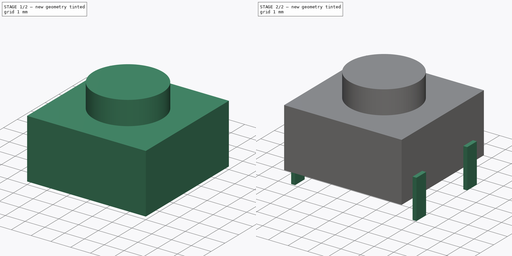
[diagram: build sequence overview — one tinted view per stage of 2, left to right]
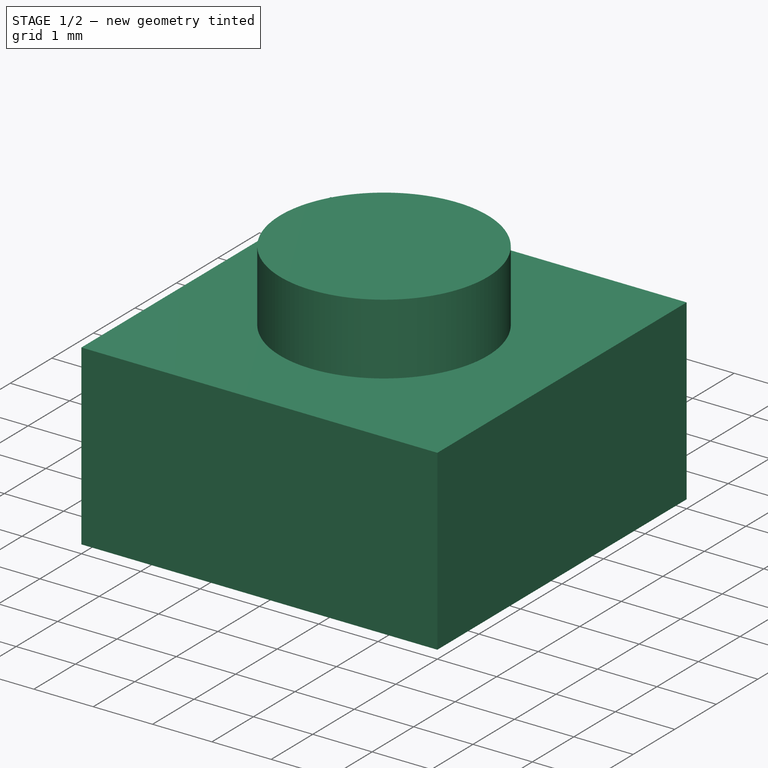
[diagram: stage 1 of 2 — iso view after this stage's code; geometry added in this stage tinted green]
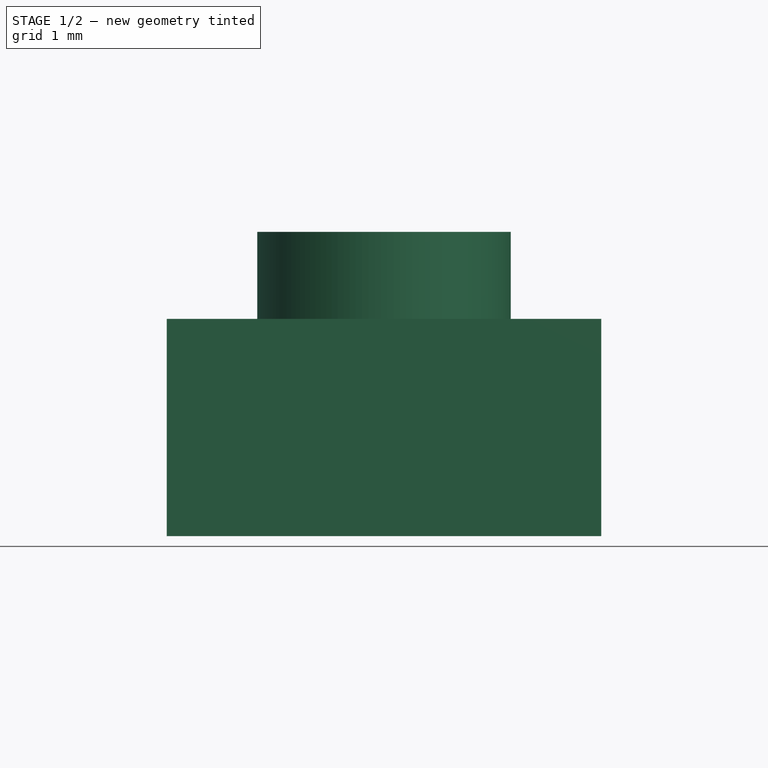
[diagram: stage 1 of 2 — front view after this stage's code; geometry added in this stage tinted green]
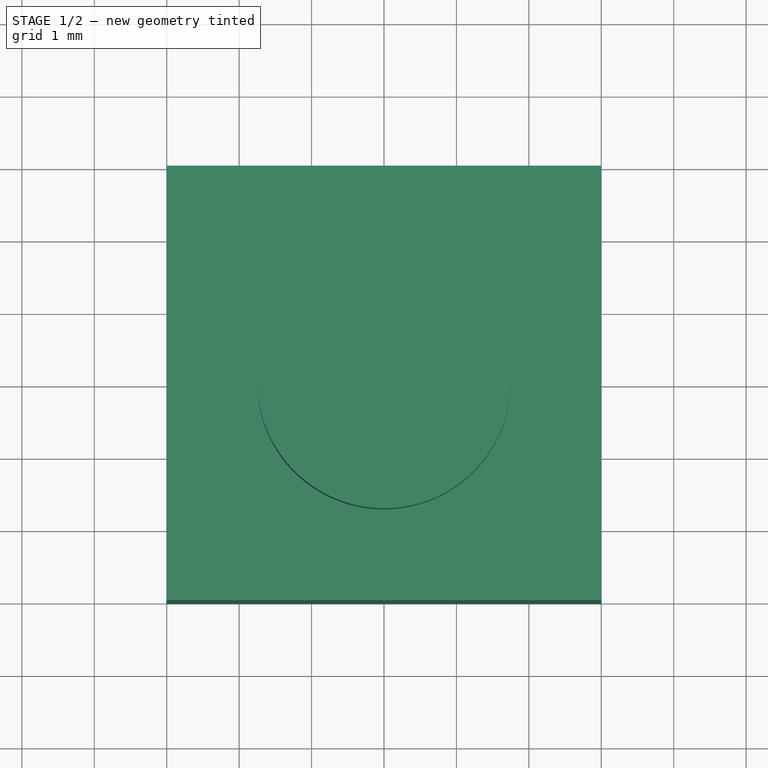
[diagram: stage 1 of 2 — top view after this stage's code; geometry added in this stage tinted green]
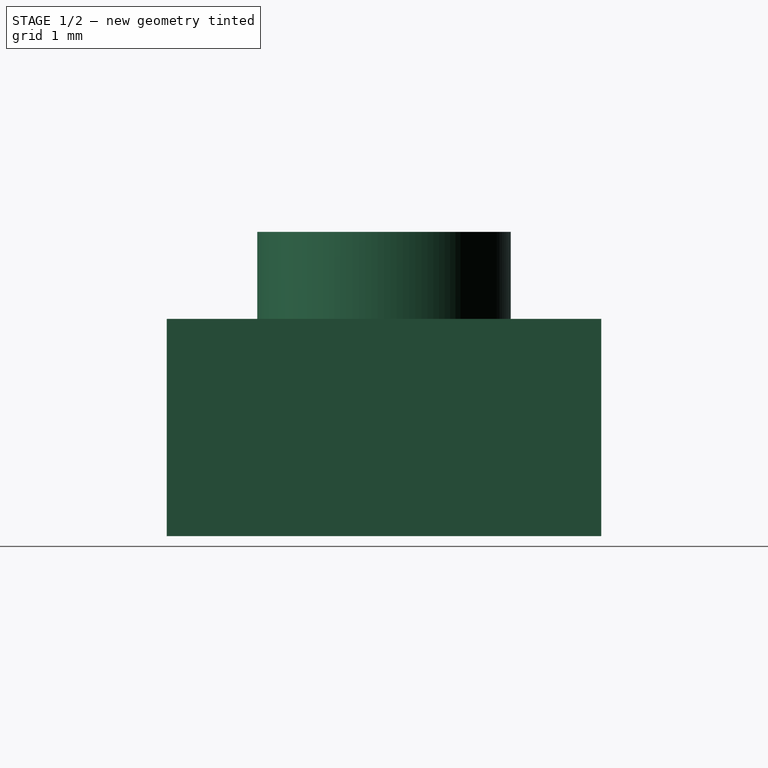
[diagram: stage 1 of 2 — right view after this stage's code; geometry added in this stage tinted green]
FCSTD DOCUMENT  (FreeCAD 0.18.4R)
Label: button
License: All rights reserved
LicenseURL: http://en.wikipedia.org/wiki/All_rights_reserved
objects: Sketcher::SketchObject×3, PartDesign::Pad×3, PartDesign::Mirrored×1, PartDesign::Body×1
note: 11 computed .brp shape members not serialized (recipe doc carries the construction recipe); baked Part::Feature solids carry a one-line shape summary decoded from their .brp

FEATURE [Sketcher::SketchObject] Sketch
  MapMode = 5
  Support = -> [XY_Plane]
  sketch-geometry (6):
    g0: LineSegment StartX=-3 StartY=-3 StartZ=0 EndX=3 EndY=-3 EndZ=0
    g1: LineSegment StartX=3 StartY=-3 StartZ=0 EndX=3 EndY=3 EndZ=0
    g2: LineSegment StartX=3 StartY=3 StartZ=0 EndX=-3 EndY=3 EndZ=0
    g3: LineSegment StartX=-3 StartY=3 StartZ=0 EndX=-3 EndY=-3 EndZ=0
    g4: LineSegment [constr] StartX=-3 StartY=3 StartZ=0 EndX=3 EndY=-3 EndZ=0
    g5: LineSegment [constr] StartX=3 StartY=3 StartZ=0 EndX=-3 EndY=-3 EndZ=0
  constraints (16):
    c: Coincident(g0,g1)
    c: Coincident(g1,g2)
    c: Coincident(g2,g3)
    c: Coincident(g3,g0)
    c: Horizontal(g0)
    c: Horizontal(g2)
    c: Vertical(g1)
    c: Vertical(g3)
    c: Coincident(g4,g2)
    c: Coincident(g4,g0)
    c: Coincident(g5,g1)
    c: Coincident(g5,g0)
    c: PointOnObject(g-1,g5)
    c: PointOnObject(g-1,g4)
    c: Equal(g3,g2)
    c: Distance(g2) = 6
FEATURE [PartDesign::Pad] Pad
  Length = 3
  Length2 = 100
  Profile = -> Sketch
  Type = 0
FEATURE [Sketcher::SketchObject] Sketch001
  MapMode = 5
  Placement = pos=(0,0,3) rot=(0,0,1;0rad)
  Support = -> [Pad]
  sketch-geometry (1):
    g0: Circle CenterX=0 CenterY=0 CenterZ=0 NormalX=0 NormalY=0 NormalZ=1 AngleXU=0 Radius=1.75
  constraints (2):
    c: Radius(g0) = 1.75
    c: Coincident(g0,g-1)
FEATURE [PartDesign::Pad] Pad001
  BaseFeature = -> Pad
  Length = 1.2
  Length2 = 100
  Profile = -> Sketch001
  Type = 0
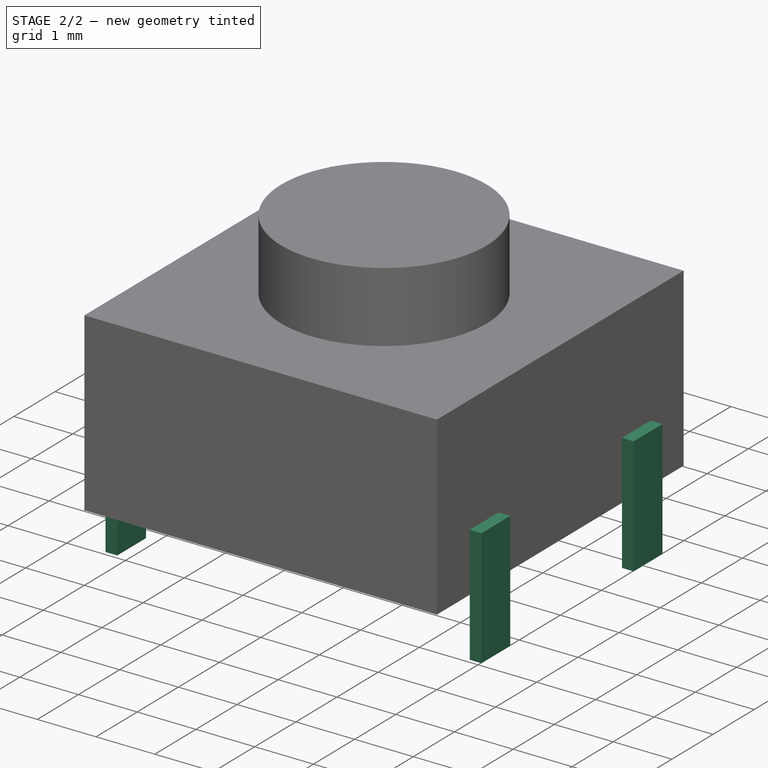
[diagram: stage 2 of 2 — iso view after this stage's code; geometry added in this stage tinted green]
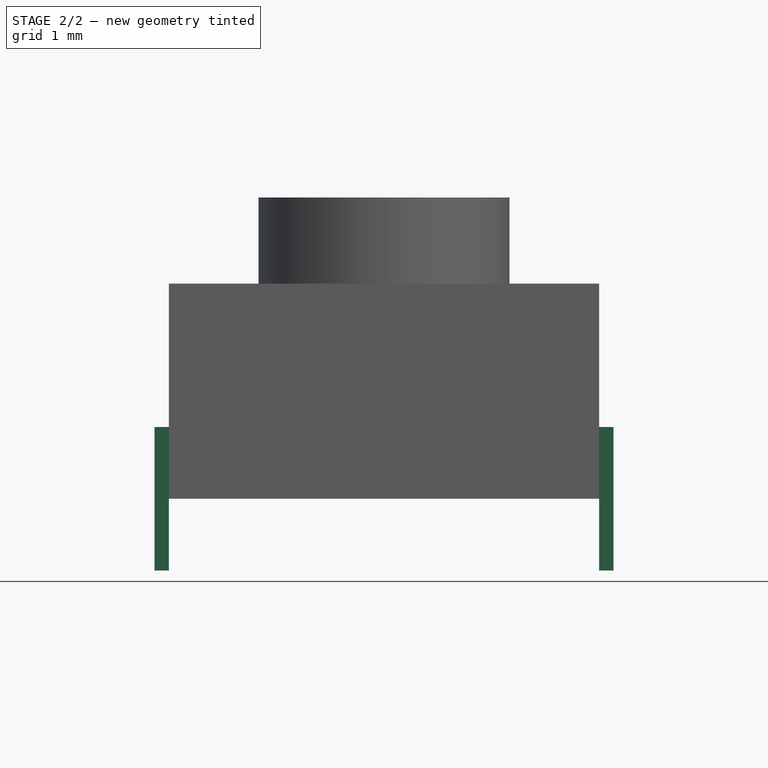
[diagram: stage 2 of 2 — front view after this stage's code; geometry added in this stage tinted green]
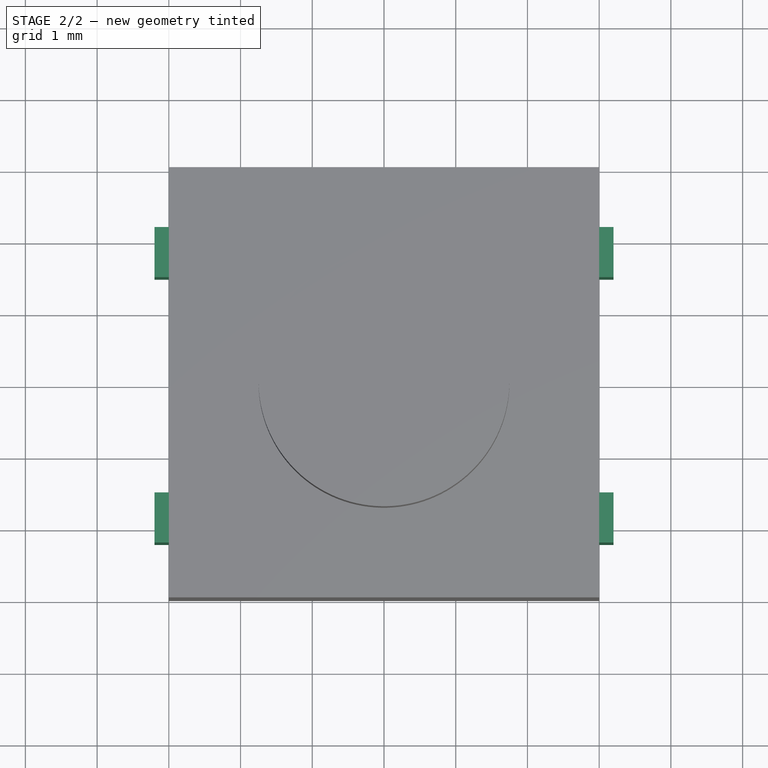
[diagram: stage 2 of 2 — top view after this stage's code; geometry added in this stage tinted green]
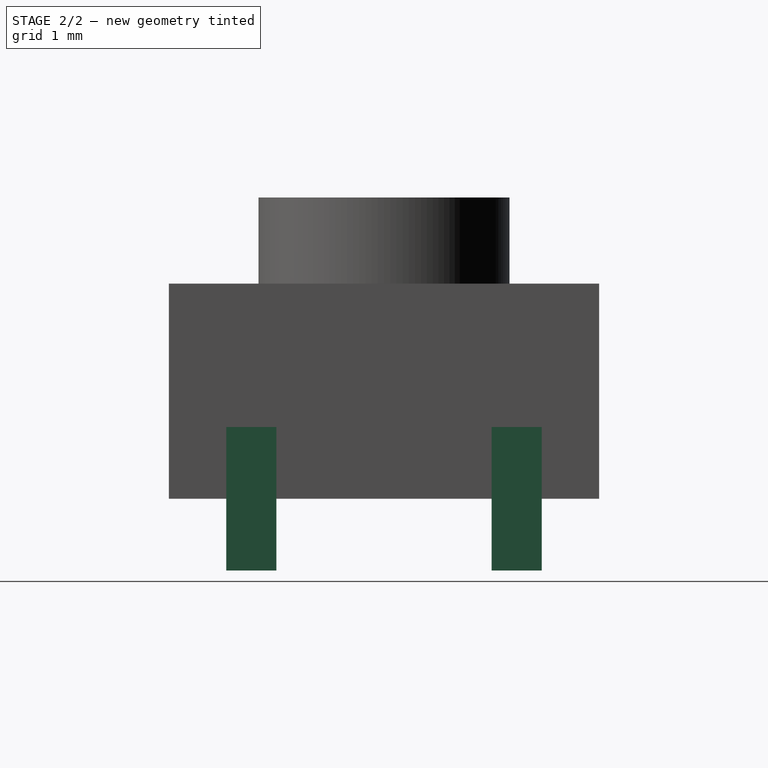
[diagram: stage 2 of 2 — right view after this stage's code; geometry added in this stage tinted green]
FEATURE [Sketcher::SketchObject] Sketch002
  ExternalGeometry = -> [Pad001]
  MapMode = 5
  Placement = pos=(0,0,0) rot=(1,0,0;3.14159rad)
  Support = -> [Pad001]
  sketch-geometry (8):
    g0: LineSegment StartX=-3 StartY=2.2 StartZ=0 EndX=-3.2 EndY=2.2 EndZ=0
    g1: LineSegment StartX=-3.2 StartY=2.2 StartZ=0 EndX=-3.2 EndY=1.5 EndZ=0
    g2: LineSegment StartX=-3.2 StartY=1.5 StartZ=0 EndX=-3 EndY=1.5 EndZ=0
    g3: LineSegment StartX=-3 StartY=1.5 StartZ=0 EndX=-3 EndY=2.2 EndZ=0
    g4: LineSegment StartX=-3 StartY=-1.5 StartZ=0 EndX=-3.2 EndY=-1.5 EndZ=0
    g5: LineSegment StartX=-3.2 StartY=-1.5 StartZ=0 EndX=-3.2 EndY=-2.2 EndZ=0
    g6: LineSegment StartX=-3.2 StartY=-2.2 StartZ=0 EndX=-3 EndY=-2.2 EndZ=0
    g7: LineSegment StartX=-3 StartY=-2.2 StartZ=0 EndX=-3 EndY=-1.5 EndZ=0
  constraints (24):
    c: Coincident(g0,g1)
    c: Coincident(g1,g2)
    c: Coincident(g2,g3)
    c: Coincident(g3,g0)
    c: Horizontal(g0)
    c: Horizontal(g2)
    c: Vertical(g1)
    c: Vertical(g3)
    c: Coincident(g4,g5)
    c: Coincident(g5,g6)
    c: Coincident(g6,g7)
    c: Coincident(g7,g4)
    c: Horizontal(g4)
    c: Horizontal(g6)
    c: Vertical(g5)
    c: Vertical(g7)
    c: PointOnObject(g4,g-3)
    c: PointOnObject(g0,g-3)
    c: Distance(g6,g-3) = 0.8
    c: Distance(g7) = 0.7
    c: Distance(g6) = 0.2
    c: Distance(g0,g-3) = 0.8
    c: Distance(g3) = 0.7
    c: Equal(g2,g4)
FEATURE [PartDesign::Pad] Pad002
  BaseFeature = -> Pad001
  Length = 2
  Length2 = 100
  Midplane = true
  Profile = -> Sketch002
  Type = 0
FEATURE [PartDesign::Mirrored] Mirrored
  BaseFeature = -> Pad002
  MirrorPlane = -> YZ_Plane
  Originals = -> [Pad002]
FEATURE [PartDesign::Body] Body
  Group = -> [Sketch,Pad,Sketch001,Pad001,Sketch002,Pad002,Mirrored]
  Origin = -> Origin
  Tip = -> Mirrored
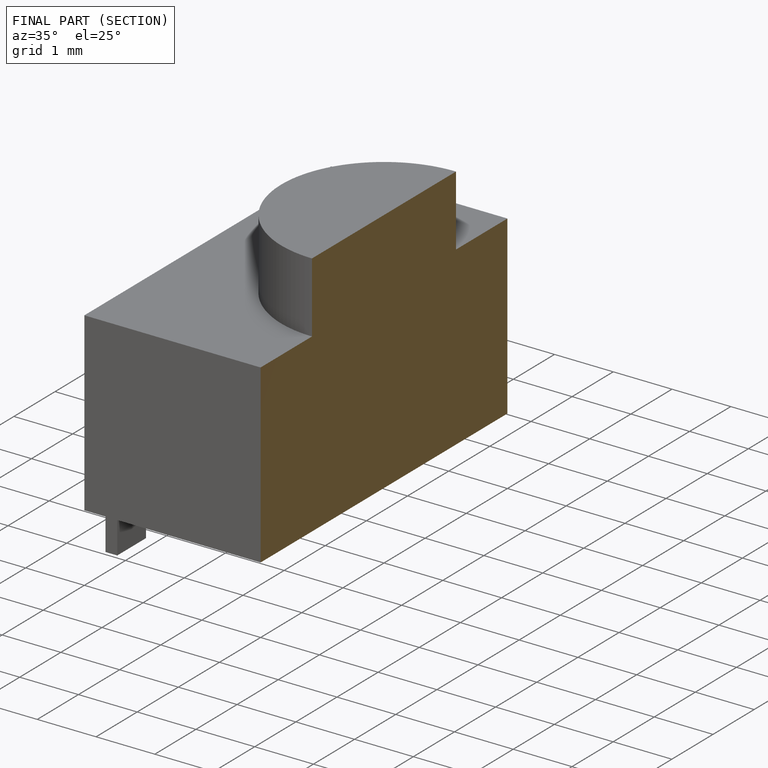
[diagram: finished part — half-section view (interior)]
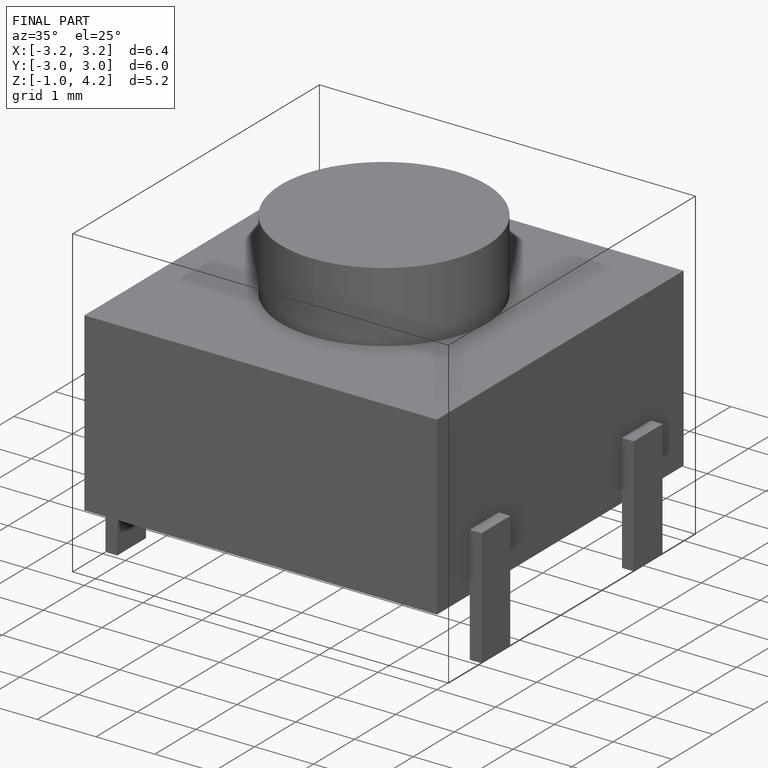
[diagram: finished part — iso view with bounding-box wireframe]
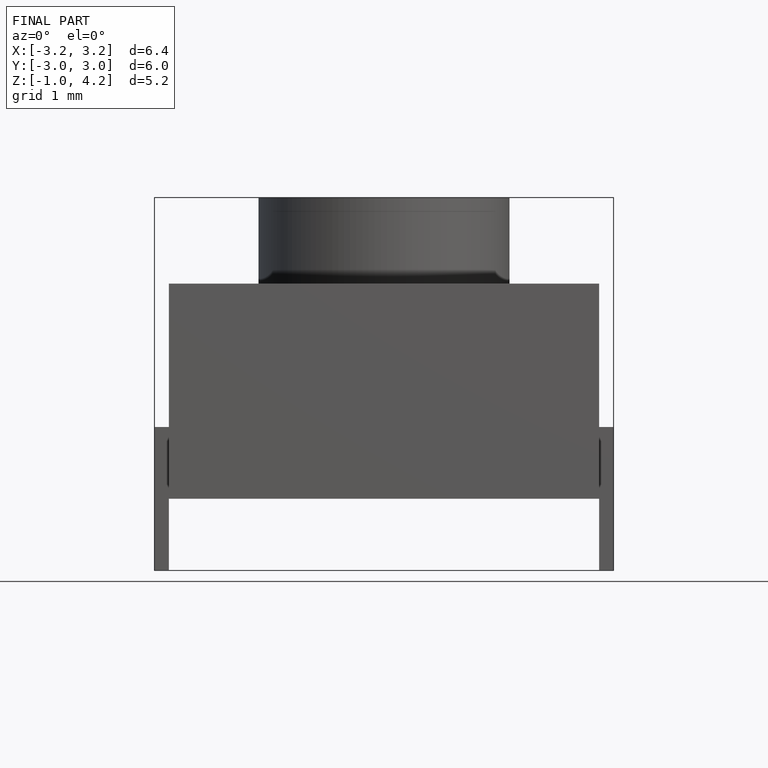
[diagram: finished part — front view with bounding-box wireframe]
